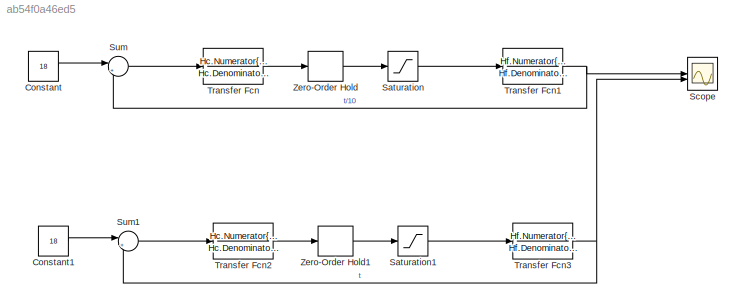
MODEL slx_ab54f0a46ed5
KIND model
CONFIG AbsTol = auto
CONFIG EnableMultiTasking = off
CONFIG FixedStep = auto
CONFIG MaxStep = auto
CONFIG MinStep = auto
CONFIG RelTol = 1e-3
CONFIG SampleTimeConstraint = Unconstrained
CONFIG SolverName = VariableStepAuto
CONFIG StartTime = 0.0
CONFIG StopTime = 0.05
BLOCK [Constant] Constant
  Value = 18
BLOCK [Constant] Constant1
  Value = 18
BLOCK [Saturate] Saturation
  LowerLimit = 0
  UpperLimit = 1
BLOCK [Saturate] Saturation1
  LowerLimit = 0
  UpperLimit = 1
BLOCK [Scope] Scope
  Floating = off
  NumInputPorts = 2
  ScopeSpecificationString = Simulink.scopes.TimeScopeBlockCfg('CurrentConfiguration', extmgr.ConfigurationSet(extmgr.Configuration('Core','General UI',true),extmgr.Configuration('Core','Source UI',true),extmgr.Configuration('Sources','WiredSimulink',true),extmgr.Configuration('Visuals','Time Domain',true,'SerializedDisplays',{struct('MinYLimReal','-2.3618','MaxYLimReal','21.25621','YLabelReal','','MinYLimMag','0.00000','MaxY...<+1446ch>
BLOCK [Sum] Sum
  Inputs = |+-
BLOCK [Sum] Sum1
  Inputs = |+-
BLOCK [TransferFcn] Transfer Fcn
  Denominator = Hc.Denominator{1}
  Numerator = Hc.Numerator{1}
BLOCK [TransferFcn] Transfer Fcn1
  Denominator = Hf.Denominator{1}
  Numerator = Hf.Numerator{1}
BLOCK [TransferFcn] Transfer Fcn2
  Denominator = Hc.Denominator{1}
  Numerator = Hc.Numerator{1}
BLOCK [TransferFcn] Transfer Fcn3
  Denominator = Hf.Denominator{1}
  Numerator = Hf.Numerator{1}
BLOCK [ZeroOrderHold] Zero-Order Hold
  SampleTime = 1/fs/10
BLOCK [ZeroOrderHold] Zero-Order Hold1
  SampleTime = 1/fs
LINE Constant1:1 -> Sum1:1
LINE Constant:1 -> Sum:1
LINE Saturation1:1 -> Transfer Fcn3:1
LINE Saturation:1 -> Transfer Fcn1:1
LINE Sum1:1 -> Transfer Fcn2:1
LINE Sum:1 -> Transfer Fcn:1
NET Transfer Fcn1:1 -> Scope:1, Sum:2
LINE Transfer Fcn2:1 -> Zero-Order Hold1:1
NET Transfer Fcn3:1 -> Scope:2, Sum1:2
LINE Transfer Fcn:1 -> Zero-Order Hold:1
LINE Zero-Order Hold1:1 -> Saturation1:1
LINE Zero-Order Hold:1 -> Saturation:1
note: NET lines group one-source signal fan-out (src -> all destinations, sorted); 1:1 wires keep LINE
